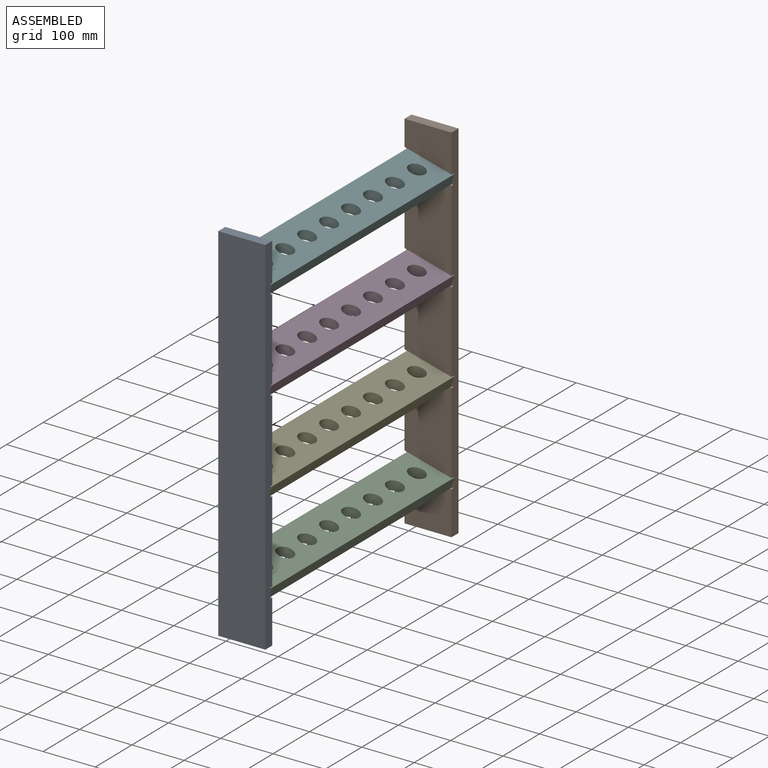
[diagram: assembled view]
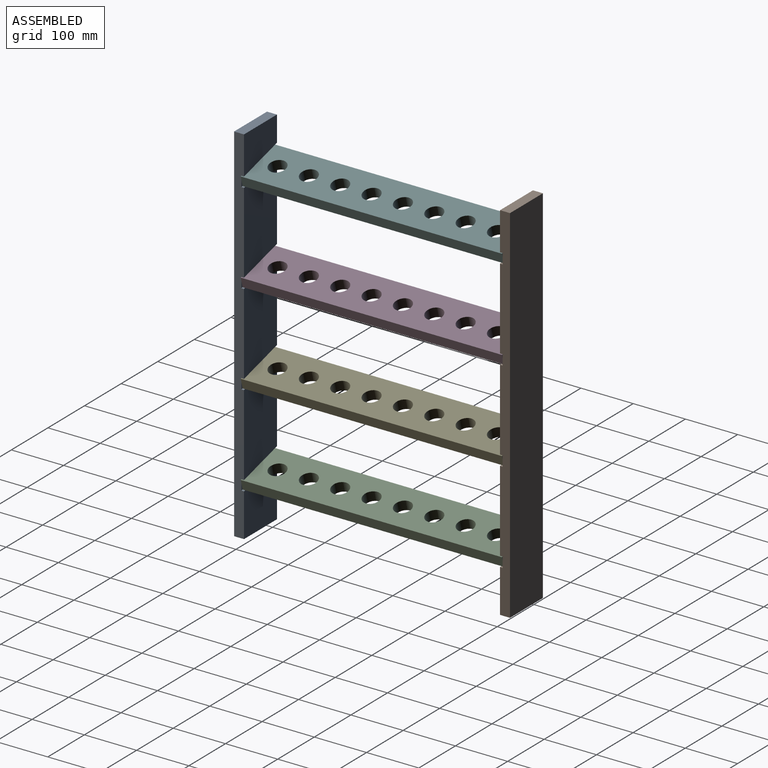
[diagram: assembled view, second angle]
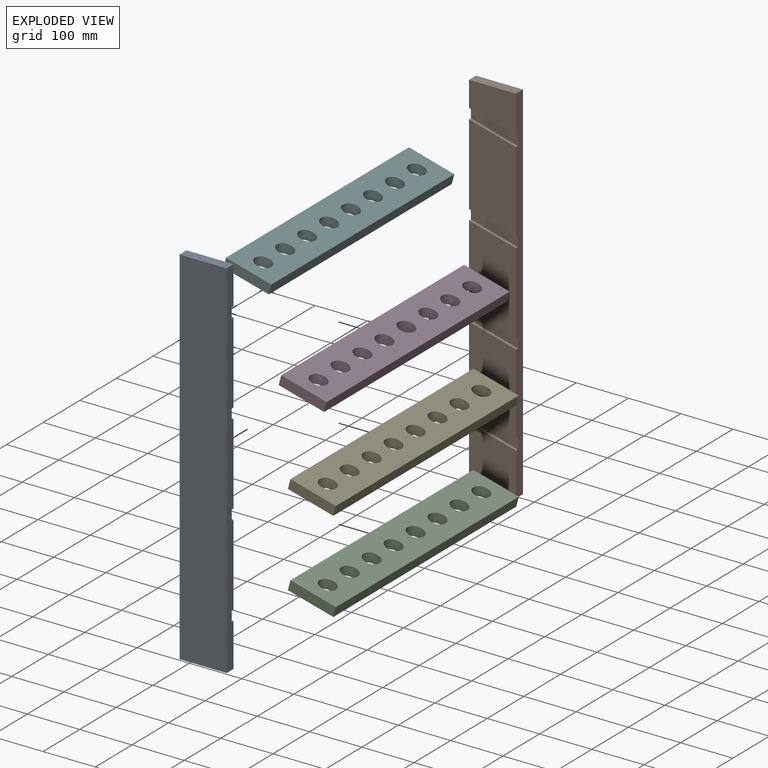
[diagram: exploded view]
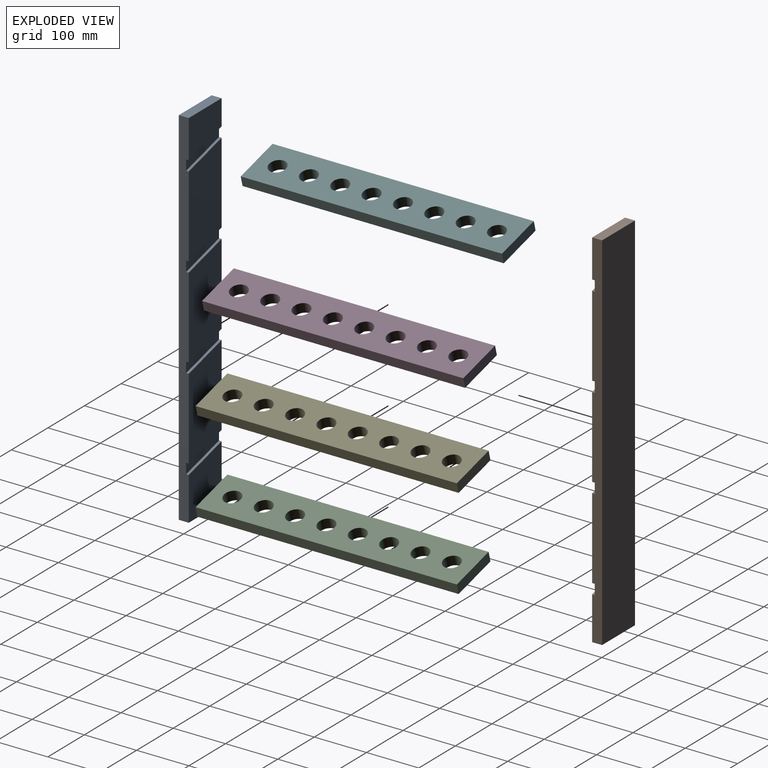
[diagram: exploded view, second angle]
ASSEMBLY  parts=6 mates=2
PART A: 22 faces, bbox 90x19x700 mm
  f0: plane 179.45x90mm, normal (0,1,0), area 13979.7mm2, adj f1,f6,f16,f20
  f1: plane 700x19mm, normal (1,0,0), area 12906.6mm2, adj f0,f2,f3,f4,f5,f7,f8,f9
  f2: plane 179.45x90mm, normal (0,1,0), area 13979.7mm2, adj f1,f6,f13,f17
  f3: plane 179.45x90mm, normal (0,1,0), area 13979.7mm2, adj f1,f6,f10,f14
  f4: plane 90x72.8mm, normal (0,1,0), area 5466.6mm2, adj f1,f5,f6,f11
  f5: plane 90x19mm, normal (0,0,1), area 1710mm2, adj f1,f4,f6,f8
  f6: plane 700x19mm, normal (-1,0,0), area 12906.6mm2, adj f0,f2,f3,f4,f5,f7,f8,f9
  f7: plane 90x19mm, normal (0,0,-1), area 1710mm2, adj f1,f6,f8,f9
  f8: plane 700x90mm, normal (0,-1,0), area 63000mm2, adj f1,f5,f6,f7
  f9: plane 106.65x90mm, normal (0,1,0), area 8513.1mm2, adj f1,f6,f7,f19
  f10: plane 90x24.12mm, normal (0.26,0,0.97), area 465.9mm2, adj f1,f3,f6,f12
  f11: plane 90x24.12mm, normal (-0.26,0,-0.97), area 465.9mm2, adj f1,f4,f6,f12
  f12: plane 90x43.79mm, normal (0,1,0), area 1770.3mm2, adj f1,f6,f10,f11
  f13: plane 90x24.12mm, normal (0.26,0,0.97), area 465.9mm2, adj f1,f2,f6,f15
  f14: plane 90x24.12mm, normal (-0.26,0,-0.97), area 465.9mm2, adj f1,f3,f6,f15
  f15: plane 90x43.79mm, normal (0,1,0), area 1770.3mm2, adj f1,f6,f13,f14
  f16: plane 90x24.12mm, normal (0.26,0,0.97), area 465.9mm2, adj f0,f1,f6,f18
  f17: plane 90x24.12mm, normal (-0.26,0,-0.97), area 465.9mm2, adj f1,f2,f6,f18
  f18: plane 90x43.79mm, normal (0,1,0), area 1770.3mm2, adj f1,f6,f16,f17
  f19: plane 90x24.12mm, normal (0.26,0,0.97), area 465.9mm2, adj f1,f6,f9,f21
  f20: plane 90x24.12mm, normal (-0.26,0,-0.97), area 465.9mm2, adj f0,f1,f6,f21
  f21: plane 90x43.79mm, normal (0,1,0), area 1770.3mm2, adj f1,f6,f19,f20
PART B: 22 faces, bbox 90x19x700 mm
  f0: plane 179.45x90mm, normal (0,-1,0), area 13979.7mm2, adj f1,f6,f16,f20
  f1: plane 700x19mm, normal (1,0,0), area 12906.6mm2, adj f0,f2,f3,f4,f5,f7,f8,f9
  f2: plane 179.45x90mm, normal (0,-1,0), area 13979.7mm2, adj f1,f6,f13,f17
  f3: plane 179.45x90mm, normal (0,-1,0), area 13979.7mm2, adj f1,f6,f10,f14
  f4: plane 90x72.8mm, normal (0,-1,0), area 5466.6mm2, adj f1,f5,f6,f11
  f5: plane 90x19mm, normal (0,0,1), area 1710mm2, adj f1,f4,f6,f8
  f6: plane 700x19mm, normal (-1,0,0), area 12906.6mm2, adj f0,f2,f3,f4,f5,f7,f8,f9
  f7: plane 90x19mm, normal (0,0,-1), area 1710mm2, adj f1,f6,f8,f9
  f8: plane 700x90mm, normal (0,1,0), area 63000mm2, adj f1,f5,f6,f7
  f9: plane 106.65x90mm, normal (0,-1,0), area 8513.1mm2, adj f1,f6,f7,f19
  f10: plane 90x24.12mm, normal (0.26,0,0.97), area 465.9mm2, adj f1,f3,f6,f12
  f11: plane 90x24.12mm, normal (-0.26,0,-0.97), area 465.9mm2, adj f1,f4,f6,f12
  f12: plane 90x43.79mm, normal (0,-1,0), area 1770.3mm2, adj f1,f6,f10,f11
  f13: plane 90x24.12mm, normal (0.26,0,0.97), area 465.9mm2, adj f1,f2,f6,f15
  f14: plane 90x24.12mm, normal (-0.26,0,-0.97), area 465.9mm2, adj f1,f3,f6,f15
  f15: plane 90x43.79mm, normal (0,-1,0), area 1770.3mm2, adj f1,f6,f13,f14
  f16: plane 90x24.12mm, normal (0.26,0,0.97), area 465.9mm2, adj f0,f1,f6,f18
  f17: plane 90x24.12mm, normal (-0.26,0,-0.97), area 465.9mm2, adj f1,f2,f6,f18
  f18: plane 90x43.79mm, normal (0,-1,0), area 1770.3mm2, adj f1,f6,f16,f17
  f19: plane 90x24.12mm, normal (0.26,0,0.97), area 465.9mm2, adj f1,f6,f9,f21
  f20: plane 90x24.12mm, normal (-0.26,0,-0.97), area 465.9mm2, adj f0,f1,f6,f21
  f21: plane 90x43.79mm, normal (0,-1,0), area 1770.3mm2, adj f1,f6,f19,f20
PART C: 14 faces, bbox 91.9x500x41.6 mm
  f0: plane 500x18.35mm, normal (-0.97,0,0.26), area 9500mm2, adj f1,f3,f4,f5
  f1: plane 500x86.93mm, normal (-0.26,0,-0.97), area 38566mm2, adj f0,f2,f4,f5,f6,f7,f8,f9
  f2: plane 500x18.35mm, normal (0.97,0,-0.26), area 9500mm2, adj f1,f3,f4,f5
  f3: plane 500x86.93mm, normal (0.26,0,0.97), area 38566mm2, adj f0,f2,f4,f5,f6,f7,f8,f9
  f4: plane 91.85x41.65mm, normal (0,1,0), area 1710mm2, adj f0,f1,f2,f3
  f5: plane 91.85x41.65mm, normal (0,-1,0), area 1710mm2, adj f0,f1,f2,f3
  f6: cylinder r=16mm len=35.83mm, axis (0.26,0,0.97), area 1910.1mm2, adj f1,f3
  f7: cylinder r=16mm len=35.83mm, axis (0.26,0,0.97), area 1910.1mm2, adj f1,f3
  f8: cylinder r=16mm len=35.83mm, axis (0.26,0,0.97), area 1910.1mm2, adj f1,f3
  f9: cylinder r=16mm len=35.83mm, axis (0.26,0,0.97), area 1910.1mm2, adj f1,f3
  f10: cylinder r=16mm len=35.83mm, axis (0.26,0,0.97), area 1910.1mm2, adj f1,f3
  f11: cylinder r=16mm len=35.83mm, axis (0.26,0,0.97), area 1910.1mm2, adj f1,f3
  f12: cylinder r=16mm len=35.83mm, axis (0.26,0,0.97), area 1910.1mm2, adj f1,f3
  f13: cylinder r=16mm len=35.83mm, axis (0.26,0,0.97), area 1910.1mm2, adj f1,f3
PART D: same geometry as C
PART E: same geometry as C
PART F: same geometry as C
PLACE A t=(0,5,0)mm
PLACE B t=(0,-5,0)mm
PLACE C t=(0,0,-525)mm
PLACE D t=(0,0,-175)mm
PLACE E t=(0,0,-350)mm
PLACE F at identity fixed
MATE fastened F.f4 <-> B.f12  axis (0,-1,0) through (-4.92,500,-18.35)mm
MATE fastened F.f5 <-> A.f12  axis (0,-1,0) through (-4.92,0,-18.35)mm
